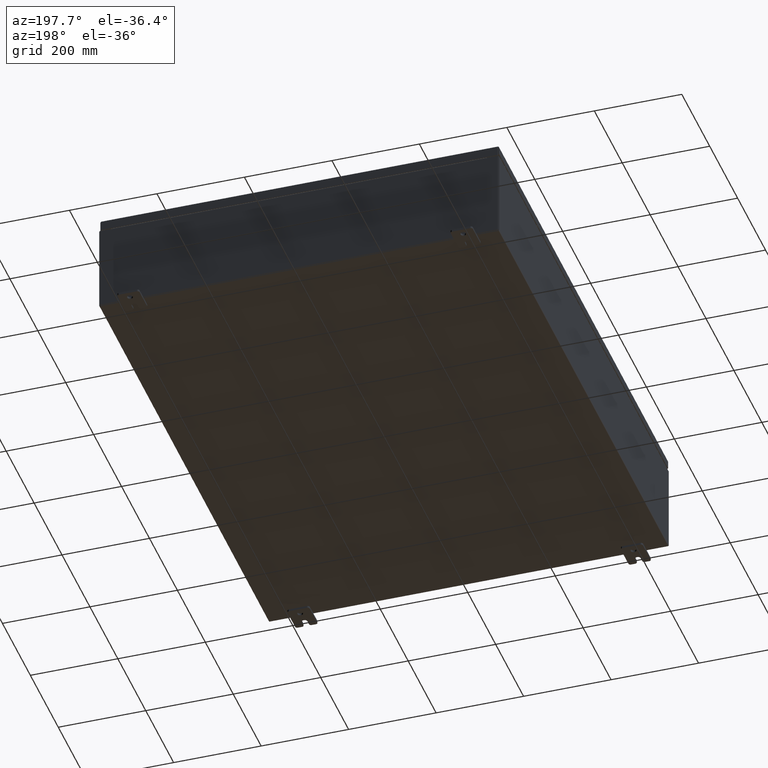
[diagram: clean part render]
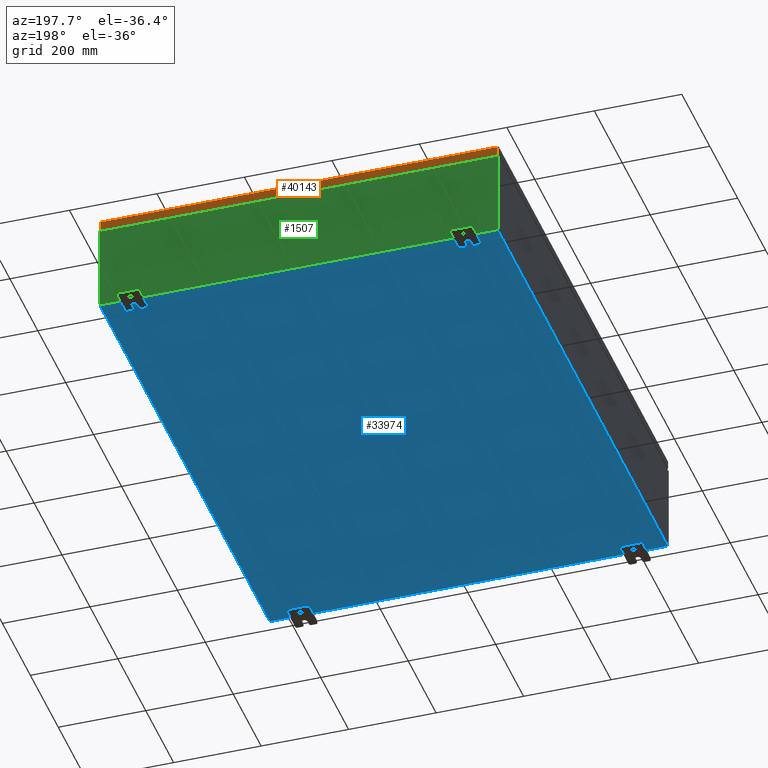
[diagram: same view with three faces highlighted in distinct colors, each labeled with its STEP entity id]
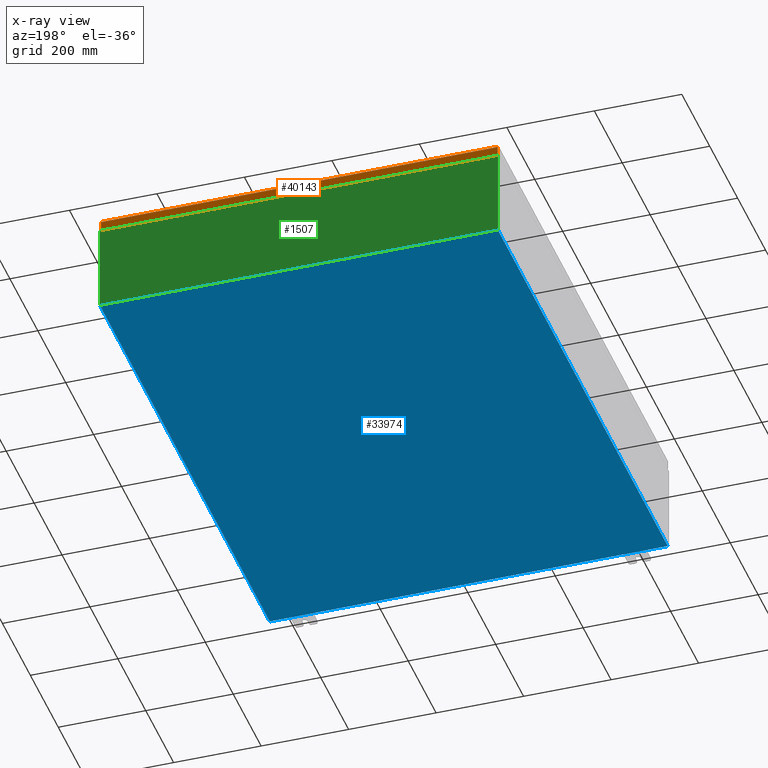
[diagram: x-ray of the same camera — body ghosted, the three highlighted faces saturated]
A machine part, auxiliary view with three faces highlighted in distinct colors.
The next image is the same camera in x-ray (body ghosted, the three faces saturated) — at least one of them is partly hidden behind the body in this view.
Their STEP definitions:

[orange] entity #40143 — the highlighted planar face has unit normal (0, -1, -0).
#215 = EDGE_CURVE ( 'NONE', #7002, #58791, #56797, .T. ) ;
#2376 = DIRECTION ( 'NONE',  ( -0.0000000000000000000, 5.064839849203706900E-015, -1.000000000000000000 ) ) ;
#4565 = DIRECTION ( 'NONE',  ( -1.000000000000000000, -6.170925750089125200E-031, -3.189293793798670500E-045 ) ) ;
#6562 = VECTOR ( 'NONE', #4565, 39.37007874015748100 ) ;
#6924 = CARTESIAN_POINT ( 'NONE',  ( -17.84865786437626100, 23.93750000000000400, -0.08769999999999550400 ) ) ;
#7002 = VERTEX_POINT ( 'NONE', #14171 ) ;
#8194 = ORIENTED_EDGE ( 'NONE', *, *, #15475, .F. ) ;
#10144 = CARTESIAN_POINT ( 'NONE',  ( -17.84865786437626100, 23.93750000000000700, -0.9377000000000042000 ) ) ;
#13684 = VECTOR ( 'NONE', #49392, 39.37007874015748100 ) ;
#14171 = CARTESIAN_POINT ( 'NONE',  ( 17.84865786437627100, 23.93750000000000400, -0.08769999999999550400 ) ) ;
#14464 = VECTOR ( 'NONE', #16686, 39.37007874015748100 ) ;
#15475 = EDGE_CURVE ( 'NONE', #41245, #58791, #68531, .T. ) ;
#16047 = FACE_OUTER_BOUND ( 'NONE', #68264, .T. ) ;
#16686 = DIRECTION ( 'NONE',  ( 0.0000000000000000000, 5.064839849203706900E-015, -1.000000000000000000 ) ) ;
#17871 = DIRECTION ( 'NONE',  ( 6.170925750089124300E-031, -1.000000000000000000, -5.064839849203706900E-015 ) ) ;
#17911 = CARTESIAN_POINT ( 'NONE',  ( -17.84865786437626100, 23.93750000000000400, -0.07469999999999962800 ) ) ;
#20627 = LINE ( 'NONE', #36336, #6562 ) ;
#21797 = CARTESIAN_POINT ( 'NONE',  ( 17.84865786437627500, 23.93750000000000400, 1.215004175463253400E-013 ) ) ;
#22719 = EDGE_CURVE ( 'NONE', #7002, #66910, #20627, .T. ) ;
#25343 = EDGE_CURVE ( 'NONE', #66910, #41245, #57183, .T. ) ;
#28971 = VECTOR ( 'NONE', #2376, 39.37007874015748100 ) ;
#33753 = ORIENTED_EDGE ( 'NONE', *, *, #215, .T. ) ;
#36336 = CARTESIAN_POINT ( 'NONE',  ( -17.93749999999999600, 23.93750000000000400, -0.08769999999999550400 ) ) ;
#38982 = PLANE ( 'NONE',  #41932 ) ;
#40143 = ADVANCED_FACE ( 'NONE', ( #16047 ), #38982, .F. ) ;
#41245 = VERTEX_POINT ( 'NONE', #10144 ) ;
#41364 = ORIENTED_EDGE ( 'NONE', *, *, #25343, .F. ) ;
#41932 = AXIS2_PLACEMENT_3D ( 'NONE', #65299, #17871, #54983 ) ;
#44269 = CARTESIAN_POINT ( 'NONE',  ( -17.93749999999999600, 23.93750000000000700, -0.9377000000000042000 ) ) ;
#46486 = CARTESIAN_POINT ( 'NONE',  ( 17.84865786437627100, 23.93750000000000700, -0.9376999999999997600 ) ) ;
#49392 = DIRECTION ( 'NONE',  ( 1.000000000000000000, 8.758115402030108600E-047, 1.218385167906012900E-016 ) ) ;
#54983 = DIRECTION ( 'NONE',  ( 0.0000000000000000000, 5.064839849203706900E-015, -1.000000000000000000 ) ) ;
#56797 = LINE ( 'NONE', #21797, #14464 ) ;
#57183 = LINE ( 'NONE', #17911, #28971 ) ;
#58791 = VERTEX_POINT ( 'NONE', #46486 ) ;
#63501 = ORIENTED_EDGE ( 'NONE', *, *, #22719, .F. ) ;
#65299 = CARTESIAN_POINT ( 'NONE',  ( -1.477165351427584500E-029, 23.93750000000000400, 1.215004175463253400E-013 ) ) ;
#66910 = VERTEX_POINT ( 'NONE', #6924 ) ;
#68264 = EDGE_LOOP ( 'NONE', ( #63501, #33753, #8194, #41364 ) ) ;
#68531 = LINE ( 'NONE', #44269, #13684 ) ;

[blue] entity #33974 — the highlighted planar face has unit normal (0, 0, -1).
#334 = CARTESIAN_POINT ( 'NONE',  ( 17.91229999999999500, -23.92530000000000000, -0.07470000000000000300 ) ) ;
#5202 = VERTEX_POINT ( 'NONE', #28883 ) ;
#11082 = CARTESIAN_POINT ( 'NONE',  ( 17.91229999999999500, 23.92529999999998900, -0.07469999999999688000 ) ) ;
#11534 = LINE ( 'NONE', #12033, #52139 ) ;
#12033 = CARTESIAN_POINT ( 'NONE',  ( -17.91230000000000500, -23.92529999999998900, -0.07469999999999994700 ) ) ;
#12622 = EDGE_CURVE ( 'NONE', #66309, #59119, #37823, .T. ) ;
#13326 = FACE_OUTER_BOUND ( 'NONE', #33014, .T. ) ;
#17342 = DIRECTION ( 'NONE',  ( -0.0000000000000000000, 1.000000000000000000, -0.0000000000000000000 ) ) ;
#20688 = CARTESIAN_POINT ( 'NONE',  ( 0.0000000000000000000, 0.0000000000000000000, -0.07470000000000000300 ) ) ;
#23701 = ORIENTED_EDGE ( 'NONE', *, *, #12622, .F. ) ;
#25698 = ORIENTED_EDGE ( 'NONE', *, *, #43830, .T. ) ;
#26005 = PLANE ( 'NONE',  #35007 ) ;
#27589 = VECTOR ( 'NONE', #53514, 39.37007874015748100 ) ;
#28883 = CARTESIAN_POINT ( 'NONE',  ( -17.91230000000000500, 23.92529999999998900, -0.07470000000000000300 ) ) ;
#29237 = LINE ( 'NONE', #11082, #27589 ) ;
#31366 = DIRECTION ( 'NONE',  ( 0.0000000000000000000, 0.0000000000000000000, -1.000000000000000000 ) ) ;
#31374 = CARTESIAN_POINT ( 'NONE',  ( 17.91229999999999500, 23.92529999999998600, -0.07469999999999688000 ) ) ;
#32695 = DIRECTION ( 'NONE',  ( 1.000000000000000000, 1.214154663850783700E-016, 0.0000000000000000000 ) ) ;
#33014 = EDGE_LOOP ( 'NONE', ( #23701, #25698, #66676, #33812 ) ) ;
#33812 = ORIENTED_EDGE ( 'NONE', *, *, #41383, .T. ) ;
#33974 = ADVANCED_FACE ( 'NONE', ( #13326 ), #26005, .T. ) ;
#35007 = AXIS2_PLACEMENT_3D ( 'NONE', #20688, #31366, #68542 ) ;
#36875 = DIRECTION ( 'NONE',  ( -1.000000000000000000, -0.0000000000000000000, -0.0000000000000000000 ) ) ;
#37823 = LINE ( 'NONE', #38012, #64494 ) ;
#38012 = CARTESIAN_POINT ( 'NONE',  ( -18.00000000000000400, -23.92530000000000400, -0.07470000000000000300 ) ) ;
#41383 = EDGE_CURVE ( 'NONE', #50602, #59119, #29237, .T. ) ;
#43830 = EDGE_CURVE ( 'NONE', #66309, #5202, #11534, .T. ) ;
#50409 = VECTOR ( 'NONE', #36875, 39.37007874015748100 ) ;
#50602 = VERTEX_POINT ( 'NONE', #31374 ) ;
#52139 = VECTOR ( 'NONE', #17342, 39.37007874015748100 ) ;
#53514 = DIRECTION ( 'NONE',  ( -0.0000000000000000000, -1.000000000000000000, -8.208677865577646300E-017 ) ) ;
#59119 = VERTEX_POINT ( 'NONE', #334 ) ;
#62908 = LINE ( 'NONE', #68737, #50409 ) ;
#64494 = VECTOR ( 'NONE', #32695, 39.37007874015748100 ) ;
#66309 = VERTEX_POINT ( 'NONE', #67286 ) ;
#66676 = ORIENTED_EDGE ( 'NONE', *, *, #68384, .F. ) ;
#67286 = CARTESIAN_POINT ( 'NONE',  ( -17.91230000000000500, -23.92529999999998600, -0.07469999999999994700 ) ) ;
#68384 = EDGE_CURVE ( 'NONE', #50602, #5202, #62908, .T. ) ;
#68542 = DIRECTION ( 'NONE',  ( -1.000000000000000000, 0.0000000000000000000, -0.0000000000000000000 ) ) ;
#68737 = CARTESIAN_POINT ( 'NONE',  ( -18.00000000000000400, 23.92530000000000000, -0.07470000000000000300 ) ) ;

[green] entity #1507 — the highlighted planar face has unit normal (0, -1, 0).
#163 = LINE ( 'NONE', #51154, #40796 ) ;
#757 = DIRECTION ( 'NONE',  ( 1.000000000000000000, 0.0000000000000000000, 0.0000000000000000000 ) ) ;
#1313 = VERTEX_POINT ( 'NONE', #27012 ) ;
#1507 = ADVANCED_FACE ( 'NONE', ( #9425 ), #12598, .F. ) ;
#1786 = VERTEX_POINT ( 'NONE', #35664 ) ;
#2032 = CARTESIAN_POINT ( 'NONE',  ( 16.92454999999967000, -0.0000000000000000000, -1.469244821010349400E-012 ) ) ;
#2206 = CARTESIAN_POINT ( 'NONE',  ( 17.92530000000000400, 0.0000000000000000000, 3.925300000000000500 ) ) ;
#3732 = VERTEX_POINT ( 'NONE', #45547 ) ;
#4031 = CARTESIAN_POINT ( 'NONE',  ( -16.92454999999999300, 0.0000000000000000000, 3.874950000000000100 ) ) ;
#4944 = CARTESIAN_POINT ( 'NONE',  ( -16.88719999999999300, -0.0000000000000000000, 0.0000000000000000000 ) ) ;
#5295 = CARTESIAN_POINT ( 'NONE',  ( -17.92529999999999600, 0.0000000000000000000, 3.925300000000000500 ) ) ;
#7485 = AXIS2_PLACEMENT_3D ( 'NONE', #12500, #49599, #17808 ) ;
#8448 = CARTESIAN_POINT ( 'NONE',  ( 16.90587500000000500, 0.0000000000000000000, 3.874950000000000100 ) ) ;
#8530 = VECTOR ( 'NONE', #63971, 39.37007874015748100 ) ;
#8784 = LINE ( 'NONE', #2032, #33661 ) ;
#9425 = FACE_OUTER_BOUND ( 'NONE', #68767, .T. ) ;
#9958 = LINE ( 'NONE', #30866, #64805 ) ;
#10285 = DIRECTION ( 'NONE',  ( 0.0000000000000000000, 0.0000000000000000000, -1.000000000000000000 ) ) ;
#10337 = EDGE_CURVE ( 'NONE', #19554, #1313, #65489, .T. ) ;
#10453 = LINE ( 'NONE', #64784, #51086 ) ;
#10655 = DIRECTION ( 'NONE',  ( 1.000000000000000000, 0.0000000000000000000, 0.0000000000000000000 ) ) ;
#10827 = ORIENTED_EDGE ( 'NONE', *, *, #41759, .T. ) ;
#11225 = CARTESIAN_POINT ( 'NONE',  ( -16.92454999999999300, -0.0000000000000000000, 0.0000000000000000000 ) ) ;
#11455 = ORIENTED_EDGE ( 'NONE', *, *, #45835, .F. ) ;
#12500 = CARTESIAN_POINT ( 'NONE',  ( -16.90587499999999500, 0.0000000000000000000, 3.874950000000000100 ) ) ;
#12598 = PLANE ( 'NONE',  #41371 ) ;
#13747 = DIRECTION ( 'NONE',  ( 0.0000000000000000000, 0.0000000000000000000, -1.000000000000000000 ) ) ;
#14344 = VERTEX_POINT ( 'NONE', #53954 ) ;
#16031 = CIRCLE ( 'NONE', #7485, 0.01867499999999949400 ) ;
#16190 = ORIENTED_EDGE ( 'NONE', *, *, #19836, .F. ) ;
#16536 = DIRECTION ( 'NONE',  ( 0.0000000000000000000, 0.0000000000000000000, 1.000000000000000000 ) ) ;
#17333 = EDGE_CURVE ( 'NONE', #61873, #21003, #16031, .T. ) ;
#17548 = AXIS2_PLACEMENT_3D ( 'NONE', #8448, #45511, #13747 ) ;
#17808 = DIRECTION ( 'NONE',  ( 0.0000000000000000000, 0.0000000000000000000, -1.000000000000000000 ) ) ;
#17922 = CARTESIAN_POINT ( 'NONE',  ( 0.0000000000000000000, 0.0000000000000000000, 0.0000000000000000000 ) ) ;
#18417 = EDGE_CURVE ( 'NONE', #37824, #32213, #39192, .T. ) ;
#18804 = ORIENTED_EDGE ( 'NONE', *, *, #59016, .T. ) ;
#19554 = VERTEX_POINT ( 'NONE', #44845 ) ;
#19836 = EDGE_CURVE ( 'NONE', #21003, #36930, #54071, .T. ) ;
#20194 = DIRECTION ( 'NONE',  ( -1.000000000000000000, -0.0000000000000000000, -0.0000000000000000000 ) ) ;
#21003 = VERTEX_POINT ( 'NONE', #4031 ) ;
#21444 = CARTESIAN_POINT ( 'NONE',  ( -17.92529999999999600, 0.0000000000000000000, 3.925300000000000500 ) ) ;
#22625 = LINE ( 'NONE', #21444, #8530 ) ;
#23084 = VECTOR ( 'NONE', #39297, 39.37007874015748100 ) ;
#23275 = DIRECTION ( 'NONE',  ( 0.0000000000000000000, -1.000000000000000000, 0.0000000000000000000 ) ) ;
#24654 = EDGE_CURVE ( 'NONE', #1313, #39453, #9958, .T. ) ;
#25115 = EDGE_CURVE ( 'NONE', #3732, #36930, #29835, .T. ) ;
#27012 = CARTESIAN_POINT ( 'NONE',  ( 17.92530000000000400, 0.0000000000000000000, -3.925299999999999100 ) ) ;
#27213 = CARTESIAN_POINT ( 'NONE',  ( -16.88719999999999600, 3.756290991288361700E-016, 3.912300000000000100 ) ) ;
#27744 = ORIENTED_EDGE ( 'NONE', *, *, #42173, .F. ) ;
#27951 = LINE ( 'NONE', #4944, #54496 ) ;
#28481 = DIRECTION ( 'NONE',  ( -8.681145560800009800E-014, 0.0000000000000000000, -1.000000000000000000 ) ) ;
#29835 = LINE ( 'NONE', #5295, #65616 ) ;
#30793 = CARTESIAN_POINT ( 'NONE',  ( 16.92455000000000400, 0.0000000000000000000, 3.925300000000000500 ) ) ;
#30866 = CARTESIAN_POINT ( 'NONE',  ( -17.92529999999999600, 0.0000000000000000000, -3.925299999999999100 ) ) ;
#32096 = ORIENTED_EDGE ( 'NONE', *, *, #17333, .F. ) ;
#32213 = VERTEX_POINT ( 'NONE', #49991 ) ;
#33153 = DIRECTION ( 'NONE',  ( 0.0000000000000000000, 0.0000000000000000000, 1.000000000000000000 ) ) ;
#33661 = VECTOR ( 'NONE', #28481, 39.37007874015748100 ) ;
#35664 = CARTESIAN_POINT ( 'NONE',  ( 16.92455000000000400, 0.0000000000000000000, 3.874950000000000100 ) ) ;
#36076 = ORIENTED_EDGE ( 'NONE', *, *, #24654, .T. ) ;
#36388 = ORIENTED_EDGE ( 'NONE', *, *, #47089, .F. ) ;
#36491 = CIRCLE ( 'NONE', #17548, 0.01867499999999949400 ) ;
#36930 = VERTEX_POINT ( 'NONE', #44002 ) ;
#37378 = ORIENTED_EDGE ( 'NONE', *, *, #18417, .T. ) ;
#37824 = VERTEX_POINT ( 'NONE', #47923 ) ;
#39192 = LINE ( 'NONE', #27213, #53324 ) ;
#39297 = DIRECTION ( 'NONE',  ( 0.0000000000000000000, 0.0000000000000000000, -1.000000000000000000 ) ) ;
#39453 = VERTEX_POINT ( 'NONE', #51078 ) ;
#39919 = VECTOR ( 'NONE', #16536, 39.37007874015748100 ) ;
#40796 = VECTOR ( 'NONE', #45787, 39.37007874015748100 ) ;
#41371 = AXIS2_PLACEMENT_3D ( 'NONE', #17922, #23275, #60429 ) ;
#41759 = EDGE_CURVE ( 'NONE', #47847, #19554, #163, .T. ) ;
#42173 = EDGE_CURVE ( 'NONE', #1786, #14344, #36491, .T. ) ;
#42725 = ORIENTED_EDGE ( 'NONE', *, *, #25115, .T. ) ;
#44002 = CARTESIAN_POINT ( 'NONE',  ( -16.92454999999999300, 0.0000000000000000000, 3.925300000000000500 ) ) ;
#44845 = CARTESIAN_POINT ( 'NONE',  ( 17.92530000000000400, 0.0000000000000000000, 3.925300000000000500 ) ) ;
#45511 = DIRECTION ( 'NONE',  ( -0.0000000000000000000, 1.000000000000000000, -0.0000000000000000000 ) ) ;
#45547 = CARTESIAN_POINT ( 'NONE',  ( -17.92529999999999600, 0.0000000000000000000, 3.925300000000000500 ) ) ;
#45787 = DIRECTION ( 'NONE',  ( 1.000000000000000000, 0.0000000000000000000, 0.0000000000000000000 ) ) ;
#45835 = EDGE_CURVE ( 'NONE', #37824, #61873, #27951, .T. ) ;
#45960 = CARTESIAN_POINT ( 'NONE',  ( -16.88719999999999300, -0.0000000000000000000, 3.874950000000000100 ) ) ;
#46962 = EDGE_CURVE ( 'NONE', #14344, #32213, #10453, .T. ) ;
#47089 = EDGE_CURVE ( 'NONE', #47847, #1786, #8784, .T. ) ;
#47847 = VERTEX_POINT ( 'NONE', #30793 ) ;
#47923 = CARTESIAN_POINT ( 'NONE',  ( -16.88719999999999300, 3.756290991288361700E-016, 3.912300000000000100 ) ) ;
#48861 = ORIENTED_EDGE ( 'NONE', *, *, #46962, .F. ) ;
#49599 = DIRECTION ( 'NONE',  ( -0.0000000000000000000, 1.000000000000000000, -0.0000000000000000000 ) ) ;
#49991 = CARTESIAN_POINT ( 'NONE',  ( 16.88720000000000700, 0.0000000000000000000, 3.912300000000000100 ) ) ;
#51078 = CARTESIAN_POINT ( 'NONE',  ( -17.92529999999999600, 0.0000000000000000000, -3.925299999999999100 ) ) ;
#51086 = VECTOR ( 'NONE', #33153, 39.37007874015748100 ) ;
#51154 = CARTESIAN_POINT ( 'NONE',  ( -17.92529999999999600, 0.0000000000000000000, 3.925300000000000500 ) ) ;
#53324 = VECTOR ( 'NONE', #757, 39.37007874015748100 ) ;
#53954 = CARTESIAN_POINT ( 'NONE',  ( 16.88720000000000700, 0.0000000000000000000, 3.874950000000000100 ) ) ;
#54071 = LINE ( 'NONE', #11225, #39919 ) ;
#54496 = VECTOR ( 'NONE', #10285, 39.37007874015748100 ) ;
#59016 = EDGE_CURVE ( 'NONE', #39453, #3732, #22625, .T. ) ;
#60429 = DIRECTION ( 'NONE',  ( 0.0000000000000000000, -0.0000000000000000000, -1.000000000000000000 ) ) ;
#61721 = ORIENTED_EDGE ( 'NONE', *, *, #10337, .T. ) ;
#61873 = VERTEX_POINT ( 'NONE', #45960 ) ;
#63971 = DIRECTION ( 'NONE',  ( -0.0000000000000000000, -0.0000000000000000000, 1.000000000000000000 ) ) ;
#64784 = CARTESIAN_POINT ( 'NONE',  ( 16.88720000000000700, 0.0000000000000000000, 0.0000000000000000000 ) ) ;
#64805 = VECTOR ( 'NONE', #20194, 39.37007874015748100 ) ;
#65489 = LINE ( 'NONE', #2206, #23084 ) ;
#65616 = VECTOR ( 'NONE', #10655, 39.37007874015748100 ) ;
#68767 = EDGE_LOOP ( 'NONE', ( #16190, #32096, #11455, #37378, #48861, #27744, #36388, #10827, #61721, #36076, #18804, #42725 ) ) ;